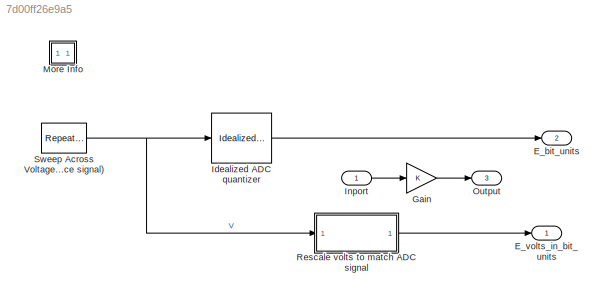
MODEL mdl_7d00ff26e9a5
KIND model
CONFIG AbsTol = auto
CONFIG EnableMultiTasking = on
CONFIG FixedStep = 0.1
CONFIG MaxStep = 0.1
CONFIG MinStep = auto
CONFIG RelTol = 1e-3
CONFIG SampleTimeConstraint = Unconstrained
CONFIG SolverName = VariableStepDiscrete
CONFIG StartFcn = if exist('adc_ploth')\n  if ishghandle(adc_ploth,'figure')\n    close(adc_ploth)\n  end\n  clear adc_ploth\nend\n
CONFIG StartTime = 0.0
CONFIG StopFcn = if exist('yout')\n if isstruct(yout)\n  adc_ploth = figure;\n  plot(yout.signals(1).values,double(yout.signals(2).values),'bo-'), grid, hold on, plot([0,4096],[0,4096],'g'), hold off\n  title(sprintf('Idealized A/D converter quantization algorithm \n (Zoom in close with the mouse to see behavior details)'))\n  zoom on\n end\nend\n
CONFIG StopTime = 6000
BLOCK [Outport] E_bit_units
  Port = 2
  VectorParamsAs1DForOutWhenUnconnected = off
BLOCK [Outport] E_volts_in_bit_units
  VectorParamsAs1DForOutWhenUnconnected = off
BLOCK [Gain] Gain
BLOCK [Reference] Idealized ADC quantizer  REF=simulink_extras/Additional
Discrete/Idealized ADC quantizer
  AttributesFormatString = (settings: %<NumberOfConverterBits>-bit converter\nVmin: %<Vmin>, Vmax: %<Vmax>)
  SourceBlock = simulink_extras/Additional\nDiscrete/Idealized ADC quantizer
  SourceType = IdealADC
BLOCK [Inport] Inport
BLOCK [SubSystem] More Info
  OpenFcn = showExample('simulink_general/sldemo_tc_scriptExample')
BLOCK [Outport] Output
  Port = 3
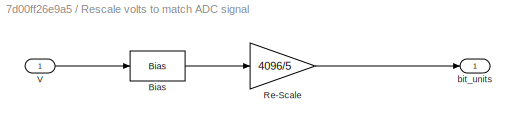
BLOCK [SubSystem] Rescale volts to match ADC signal
BLOCK [Bias] Rescale volts to match ADC signal/Bias
  SaturateOnIntegerOverflow = off
BLOCK [Gain] Rescale volts to match ADC signal/Re-Scale
  Gain = 4096/5
BLOCK [Inport] Rescale volts to match ADC signal/V
BLOCK [Outport] Rescale volts to match ADC signal/bit_units
  VectorParamsAs1DForOutWhenUnconnected = off
BLOCK [Reference] Sweep Across Voltage Range (Reference signal)  REF=simulink/Sources/Repeating
Sequence
  SourceBlock = simulink/Sources/Repeating\nSequence
  SourceType = Repeating table
LINE Gain:1 -> Output:1
LINE Idealized ADC quantizer:1 -> E_bit_units:1
LINE Inport:1 -> Gain:1
LINE Rescale volts to match ADC signal/Bias:1 -> Rescale volts to match ADC signal/Re-Scale:1
LINE Rescale volts to match ADC signal/Re-Scale:1 -> Rescale volts to match ADC signal/bit_units:1
LINE Rescale volts to match ADC signal/V:1 -> Rescale volts to match ADC signal/Bias:1
LINE Rescale volts to match ADC signal:1 -> E_volts_in_bit_units:1
NET Sweep Across Voltage Range (Reference signal):1 -> Idealized ADC quantizer:1, Rescale volts to match ADC signal:1
note: NET lines group one-source signal fan-out (src -> all destinations, sorted); 1:1 wires keep LINE
